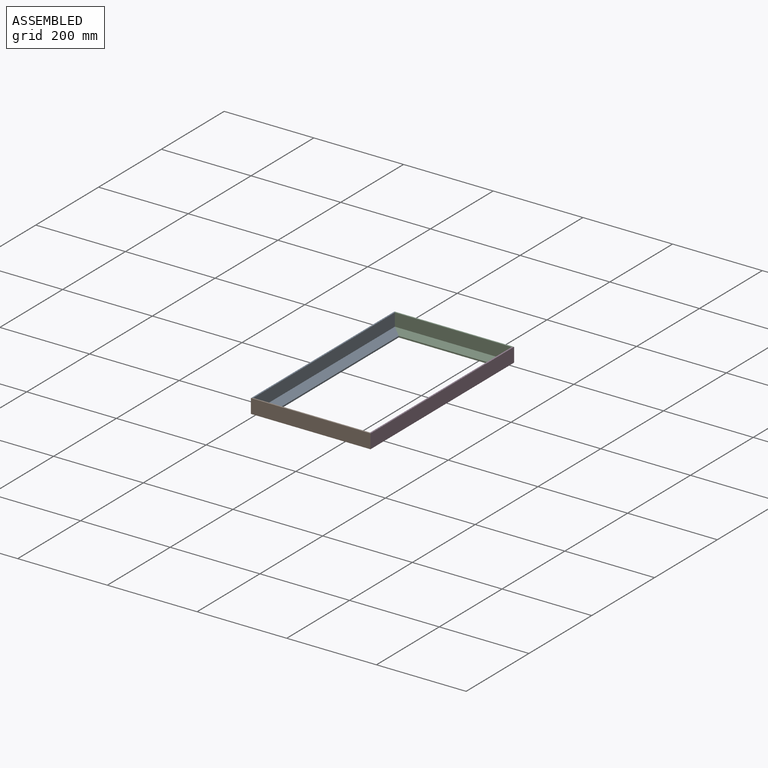
[diagram: assembled view]
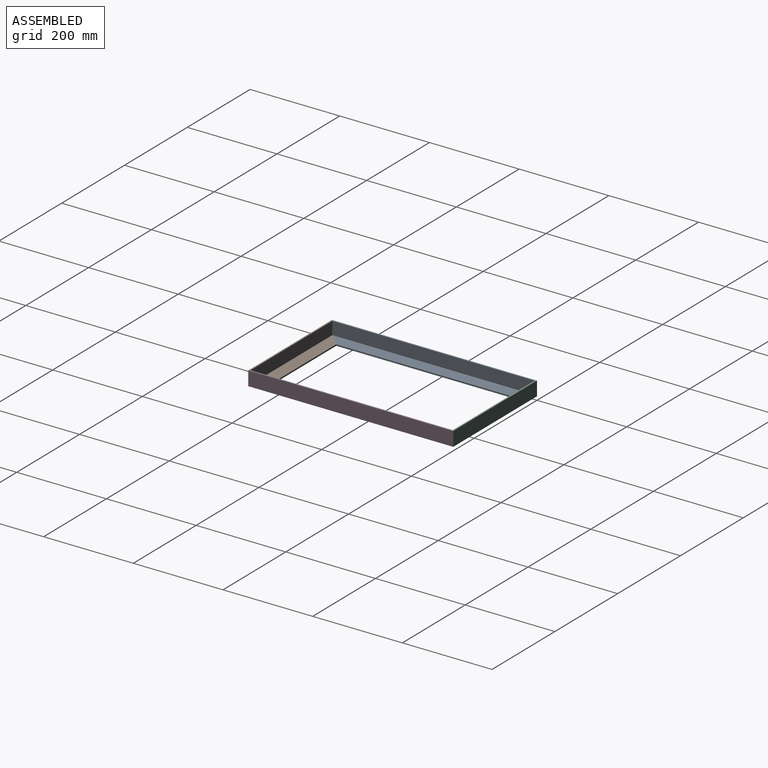
[diagram: assembled view, second angle]
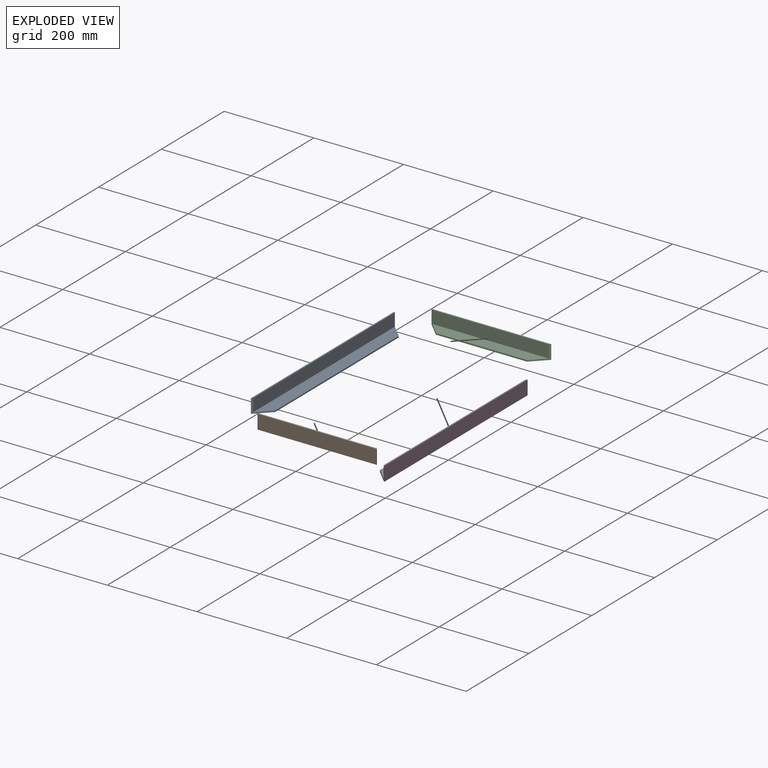
[diagram: exploded view]
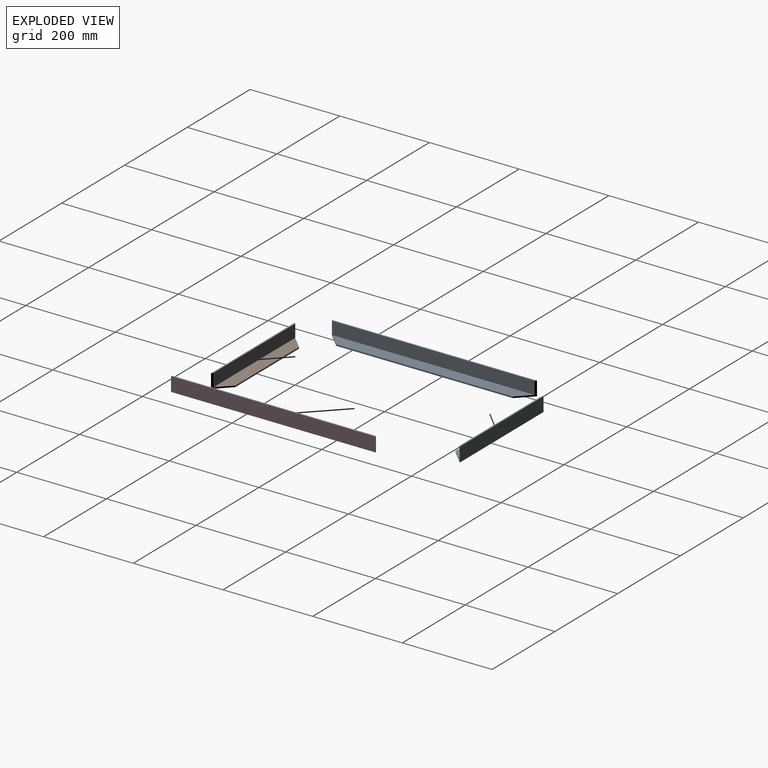
[diagram: exploded view, second angle]
ASSEMBLY  parts=4 mates=3
PART A: 8 faces, bbox 457.2x31.8x31.8 mm
  f0: plane 457.2x3.18mm, normal (0,0,1), area 1441.5mm2, adj f1,f5,f6,f7
  f1: plane 450.85x28.58mm, normal (0,-1,0), area 12883mm2, adj f0,f2,f6,f7
  f2: plane 450.85x28.58mm, normal (0,0,1), area 12066.5mm2, adj f1,f3,f6,f7
  f3: plane 393.7x3.18mm, normal (0,-1,0), area 1250mm2, adj f2,f4,f6,f7
  f4: plane 457.2x31.75mm, normal (0,0,-1), area 13508mm2, adj f3,f5,f6,f7
  f5: plane 457.2x31.75mm, normal (0,1,0), area 14516.1mm2, adj f0,f4,f6,f7
  f6: plane 31.75x31.75mm, normal (-0.71,-0.71,0), area 270.9mm2, adj f0,f1,f2,f3,f4,f5
  f7: plane 31.75x31.75mm, normal (0.71,-0.71,0), area 270.9mm2, adj f0,f1,f2,f3,f4,f5
PART B: 8 faces, bbox 266.7x31.8x31.8 mm
  f0: plane 266.7x3.18mm, normal (0,0,1), area 836.7mm2, adj f1,f5,f6,f7
  f1: plane 260.35x28.58mm, normal (0,-1,0), area 7439.5mm2, adj f0,f2,f6,f7
  f2: plane 260.35x28.58mm, normal (0,0,1), area 6623mm2, adj f1,f3,f6,f7
  f3: plane 203.2x3.18mm, normal (0,-1,0), area 645.2mm2, adj f2,f4,f6,f7
  f4: plane 266.7x31.75mm, normal (0,0,-1), area 7459.7mm2, adj f3,f5,f6,f7
  f5: plane 266.7x31.75mm, normal (0,1,0), area 8467.7mm2, adj f0,f4,f6,f7
  f6: plane 31.75x31.75mm, normal (-0.71,-0.71,0), area 270.9mm2, adj f0,f1,f2,f3,f4,f5
  f7: plane 31.75x31.75mm, normal (0.71,-0.71,0), area 270.9mm2, adj f0,f1,f2,f3,f4,f5
PART C: same geometry as B
PART D: same geometry as A
PLACE A rot(axis=(0,0,1),90deg) t=(0,-457.2,0)mm
PLACE B rot(axis=(0,0,1),180deg) t=(266.7,-457.2,0)mm
PLACE C at identity
PLACE D rot(axis=(0,0,-1),90deg) t=(266.7,0,0)mm
MATE fastened C.f7 <-> D.f6  axis (0.71,-0.71,0) through (266.7,0,0)mm
MATE fastened C.f6 <-> A.f7  axis (-0.71,-0.71,0) through (0,0,0)mm
MATE fastened B.f7 <-> A.f6  axis (-0.71,0.71,0) through (0,-457.2,0)mm
